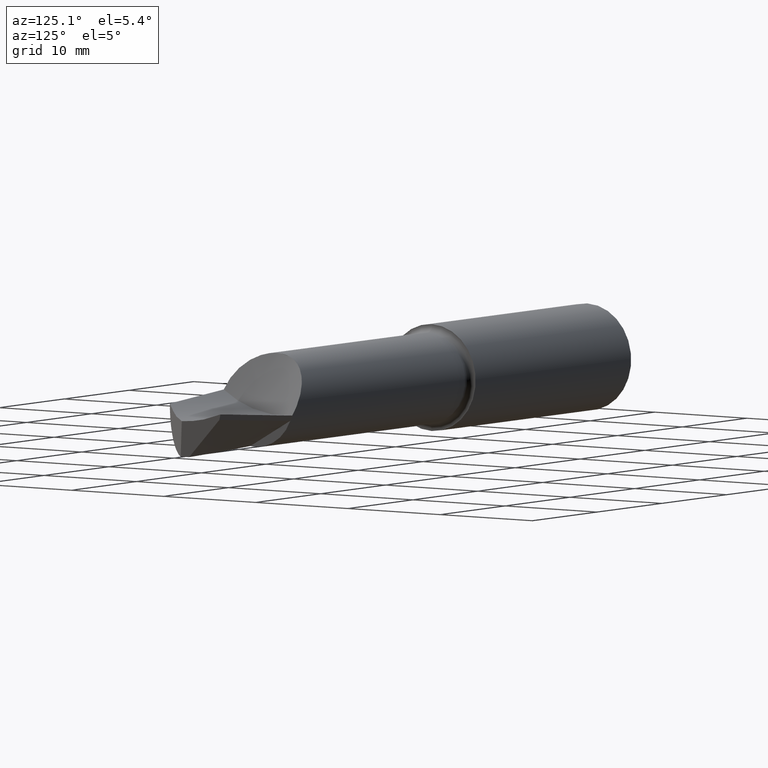
[diagram: clean part render]
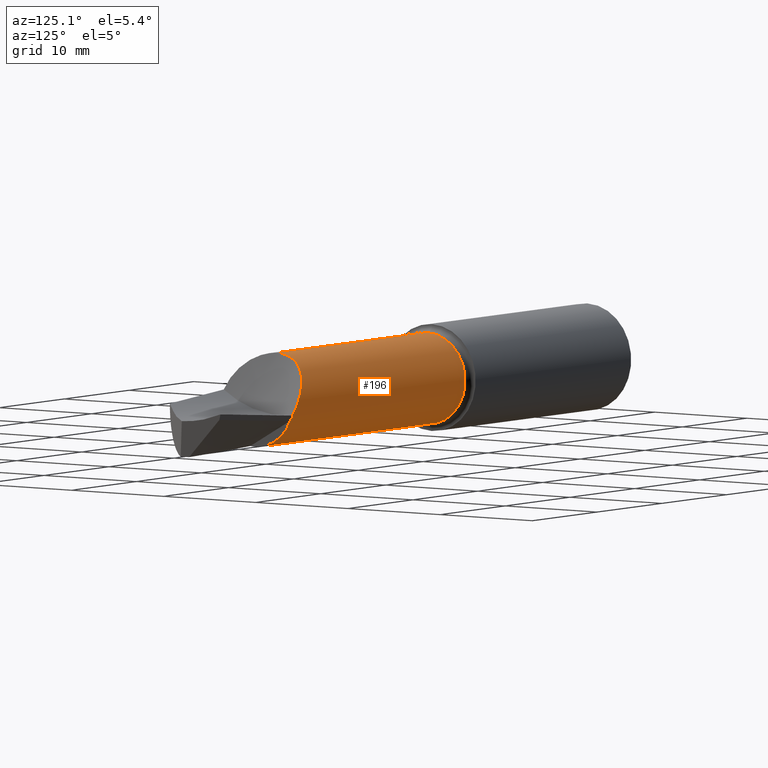
[diagram: same view with one face highlighted and labeled with its STEP entity id]
A machine part, auxiliary view. The second image highlights one B-rep face of the part: STEP entity #196.
In plain terms, the highlighted cylindrical surface (partial cylindrical patch) has radius 4.064 mm, axis along (-1, -0, -0).
Its self-contained STEP definition (entity closure, byte-faithful):
#9 = CARTESIAN_POINT ( 'NONE',  ( 1.920871276518390847, 0.1082838015085670902, 0.1177907047447029343 ) ) ;
#13 = ORIENTED_EDGE ( 'NONE', *, *, #622, .T. ) ;
#15 = CARTESIAN_POINT ( 'NONE',  ( 1.920712789876177551, 0.1080209964743852336, 0.1180317589214080198 ) ) ;
#19 = CARTESIAN_POINT ( 'NONE',  ( 1.998603276693925901, 0.1603637048867739556, 0.003625442116832091732 ) ) ;
#23 = ORIENTED_EDGE ( 'NONE', *, *, #470, .F. ) ;
#24 = CARTESIAN_POINT ( 'NONE',  ( 1.989948343244846374, 0.1591131003026595714, 0.01683813177506649980 ) ) ;
#74 = CARTESIAN_POINT ( 'NONE',  ( 2.030000000000000249, 0.000000000000000000, 0.000000000000000000 ) ) ;
#76 = VERTEX_POINT ( 'NONE', #324 ) ;
#80 = CARTESIAN_POINT ( 'NONE',  ( 1.991119472828822845, 0.1592905354085780156, 0.01505102133309209334 ) ) ;
#84 = B_SPLINE_CURVE_WITH_KNOTS ( 'NONE', 3,
 ( #757, #355, #487, #86, #632, #561, #160, #495, #90, #575, #15, #9, #702, #492, #212, #284, #848, #835, #146, #627, #227, #420, #709, #349, #769, #220, #289, #216, #504, #151, #829, #712, #432, #363, #565, #765, #361, #24, #429, #777, #636, #80, #19, #293, #570, #639, #844 ),
 .UNSPECIFIED., .F., .F.,
 ( 4, 2, 2, 1, 1, 1, 1, 2, 2, 2, 2, 2, 1, 1, 1, 1, 1, 2, 2, 2, 2, 2, 1, 1, 1, 1, 2, 2, 2, 4 ),
 ( 0.000000000000000000, 0.1249999999996976585, 0.1874999999995461131, 0.2187499999994697575, 0.2343749999994310940, 0.2421874999994118594, 0.2460937499994021727, 0.2480468749993972877, 0.2499999999993924027, 0.3749999999991128208, 0.4374999999989738764, 0.4687499999989044319, 0.4843749999988689603, 0.4921874999988511967, 0.4960937499988423149, 0.4980468749988371524, 0.4990234374988346544, 0.4995117187488326560, 0.4999999999988307131, 0.6249999999991795452, 0.6874999999993546274, 0.7187499999994416688, 0.7343749999994857447, 0.7421874999995077271, 0.7460937499995187183, 0.7480468749995241584, 0.7490234374995273781, 0.7499999999995304867, 0.8749999999997651878, 1.000000000000000000 ),
 .UNSPECIFIED. ) ;
#86 = CARTESIAN_POINT ( 'NONE',  ( 1.910327723181869830, 0.08641472160125056312, 0.1347679649106934829 ) ) ;
#90 = CARTESIAN_POINT ( 'NONE',  ( 1.919928138713796084, 0.1067020919287988007, 0.1192289840019037095 ) ) ;
#114 = CARTESIAN_POINT ( 'NONE',  ( 0.000000000000000000, 0.000000000000000000, 0.1600000000000000311 ) ) ;
#124 = CYLINDRICAL_SURFACE ( 'NONE', #234, 0.1600000000000000311 ) ;
#125 = VECTOR ( 'NONE', #147, 39.37007874015748143 ) ;
#146 = CARTESIAN_POINT ( 'NONE',  ( 1.947019681881580588, 0.1387129769115153510, 0.07979012570145578576 ) ) ;
#147 = DIRECTION ( 'NONE',  ( -1.000000000000000000, -0.000000000000000000, -0.000000000000000000 ) ) ;
#151 = CARTESIAN_POINT ( 'NONE',  ( 1.958699372623301516, 0.1472939287305778944, 0.06321031264811800832 ) ) ;
#156 = DIRECTION ( 'NONE',  ( 0.000000000000000000, -1.776356839400250465E-15, 1.000000000000000000 ) ) ;
#160 = CARTESIAN_POINT ( 'NONE',  ( 1.916789700801570184, 0.1010672659549176622, 0.1240943027878889521 ) ) ;
#162 = EDGE_CURVE ( 'NONE', #183, #861, #250, .T. ) ;
#163 = VERTEX_POINT ( 'NONE', #236 ) ;
#170 = CARTESIAN_POINT ( 'NONE',  ( 1.904983688696478161, 0.002969815284514370178, 0.1599763615075830148 ) ) ;
#174 = DIRECTION ( 'NONE',  ( 1.000000000000000000, -0.000000000000000000, -0.000000000000000000 ) ) ;
#181 = CIRCLE ( 'NONE', #453, 0.1600000000000000311 ) ;
#183 = VERTEX_POINT ( 'NONE', #524 ) ;
#192 = CARTESIAN_POINT ( 'NONE',  ( 1.902730000000000254, 0.05267046966936036329, 0.1510821684541527876 ) ) ;
#196 = ADVANCED_FACE ( 'NONE', ( #822 ), #124, .T. ) ;
#198 = CARTESIAN_POINT ( 'NONE',  ( 1.904486475055115813, 0.005923995043626456222, 0.1599058303736695108 ) ) ;
#203 = CARTESIAN_POINT ( 'NONE',  ( 2.030000000000000249, 1.959434878635765723E-17, -0.1600000000000000311 ) ) ;
#212 = CARTESIAN_POINT ( 'NONE',  ( 1.929409197918347196, 0.1210286087172428443, 0.1051256315935510388 ) ) ;
#213 = CARTESIAN_POINT ( 'NONE',  ( 0.000000000000000000, 1.959434878635765723E-17, -0.1600000000000000311 ) ) ;
#216 = CARTESIAN_POINT ( 'NONE',  ( 1.953970012117490551, 0.1439662759634111333, 0.06981197197337773996 ) ) ;
#220 = CARTESIAN_POINT ( 'NONE',  ( 1.953861408742878281, 0.1438905671395183661, 0.06996789774167704035 ) ) ;
#227 = CARTESIAN_POINT ( 'NONE',  ( 1.950860459032707883, 0.1417270032833742310, 0.07427636072002410939 ) ) ;
#234 = AXIS2_PLACEMENT_3D ( 'NONE', #553, #335, #826 ) ;
#236 = CARTESIAN_POINT ( 'NONE',  ( 1.905499570275073884, -5.321508395890695654E-06, 0.1600360725456251021 ) ) ;
#243 = ORIENTED_EDGE ( 'NONE', *, *, #672, .T. ) ;
#250 = CIRCLE ( 'NONE', #528, 0.1600000000000000588 ) ;
#256 = VERTEX_POINT ( 'NONE', #203 ) ;
#275 = CARTESIAN_POINT ( 'NONE',  ( 1.902730000000000254, 0.01989993846662519231, 0.1587576531982774763 ) ) ;
#284 = CARTESIAN_POINT ( 'NONE',  ( 1.937645129732998184, 0.1301111106144090257, 0.09325196797482968036 ) ) ;
#289 = CARTESIAN_POINT ( 'NONE',  ( 1.953917806275821123, 0.1439299122041075019, 0.06988692580905196683 ) ) ;
#293 = CARTESIAN_POINT ( 'NONE',  ( 2.005324745455346225, 0.1601424170580331985, -0.006971042043759497972 ) ) ;
#302 = CARTESIAN_POINT ( 'NONE',  ( 1.905499570275073884, -5.321508395890695654E-06, 0.1600360725456251021 ) ) ;
#315 = CARTESIAN_POINT ( 'NONE',  ( 0.9848893049320387449, 0.000000000000000000, 0.000000000000000000 ) ) ;
#317 = ORIENTED_EDGE ( 'NONE', *, *, #643, .F. ) ;
#319 = CARTESIAN_POINT ( 'NONE',  ( 1.905439237216514314, 0.0004229076541224842411, 0.1599995824216486340 ) ) ;
#323 = CARTESIAN_POINT ( 'NONE',  ( 2.027284874116872082, 0.1542105332948809637, -0.04265104243636441694 ) ) ;
#324 = CARTESIAN_POINT ( 'NONE',  ( 2.030000000000000693, 0.1480765703150433432, -0.06060799719322888107 ) ) ;
#334 = CARTESIAN_POINT ( 'NONE',  ( 2.029999999999999805, 0.1542653020987288237, -0.04245252134311836706 ) ) ;
#335 = DIRECTION ( 'NONE',  ( -1.000000000000000000, -0.000000000000000000, -0.000000000000000000 ) ) ;
#345 = DIRECTION ( 'NONE',  ( -1.000000000000000000, -0.000000000000000000, -0.000000000000000000 ) ) ;
#349 = CARTESIAN_POINT ( 'NONE',  ( 1.953579831434732794, 0.1436934744917261753, 0.07037216748723297555 ) ) ;
#355 = CARTESIAN_POINT ( 'NONE',  ( 1.903737868345322770, 0.06254246222550741141, 0.1476406931928825328 ) ) ;
#361 = CARTESIAN_POINT ( 'NONE',  ( 1.988736690453450473, 0.1589113314863259685, 0.01868532291329296630 ) ) ;
#363 = CARTESIAN_POINT ( 'NONE',  ( 1.980659223266723501, 0.1570289741151467133, 0.03093100650762655238 ) ) ;
#366 = EDGE_CURVE ( 'NONE', #256, #861, #425, .T. ) ;
#393 = VERTEX_POINT ( 'NONE', #488 ) ;
#409 = CARTESIAN_POINT ( 'NONE',  ( 1.903035619492304820, 0.01668207598574054581, 0.1591610274994331997 ) ) ;
#420 = CARTESIAN_POINT ( 'NONE',  ( 1.952405490648220443, 0.1428583629082460227, 0.07205818879807183996 ) ) ;
#425 = LINE ( 'NONE', #213, #125 ) ;
#429 = CARTESIAN_POINT ( 'NONE',  ( 1.990560728681558089, 0.1592080232503708392, 0.01590384677769644123 ) ) ;
#432 = CARTESIAN_POINT ( 'NONE',  ( 1.978309509796804866, 0.1562809758847625574, 0.03446099718138136148 ) ) ;
#438 = EDGE_CURVE ( 'NONE', #535, #563, #846, .T. ) ;
#448 = DIRECTION ( 'NONE',  ( -1.000000000000000000, -0.000000000000000000, -0.000000000000000000 ) ) ;
#449 = B_SPLINE_CURVE_WITH_KNOTS ( 'NONE', 3,
 ( #302, #663, #319, #596, #856, #170, #198, #811, #409, #275 ),
 .UNSPECIFIED., .F., .F.,
 ( 4, 2, 1, 1, 1, 1, 4 ),
 ( 0.9236952330290405522, 0.9260797569968829412, 0.9284642809647252193, 0.9332333289004099974, 0.9427714247717798868, 0.9618476165145197765, 1.000000000000000000 ),
 .UNSPECIFIED. ) ;
#453 = AXIS2_PLACEMENT_3D ( 'NONE', #499, #775, #156 ) ;
#454 = DIRECTION ( 'NONE',  ( 0.000000000000000000, 0.000000000000000000, 1.000000000000000000 ) ) ;
#455 = ORIENTED_EDGE ( 'NONE', *, *, #366, .T. ) ;
#470 = EDGE_CURVE ( 'NONE', #163, #183, #867, .T. ) ;
#487 = CARTESIAN_POINT ( 'NONE',  ( 1.905756869543390408, 0.07230905699555215116, 0.1431468972027687692 ) ) ;
#488 = CARTESIAN_POINT ( 'NONE',  ( 2.029999999999999805, 0.1542653020987288237, -0.04245252134311836706 ) ) ;
#492 = CARTESIAN_POINT ( 'NONE',  ( 1.924786096963005066, 0.1147195347630220186, 0.1118482726695071150 ) ) ;
#495 = CARTESIAN_POINT ( 'NONE',  ( 1.918853876954278448, 0.1048406460502311066, 0.1208799815007141898 ) ) ;
#499 = CARTESIAN_POINT ( 'NONE',  ( 2.030000000000000249, 0.000000000000000000, 0.000000000000000000 ) ) ;
#504 = CARTESIAN_POINT ( 'NONE',  ( 1.955057482739563479, 0.1447233090776400555, 0.06825065017673760670 ) ) ;
#506 = ORIENTED_EDGE ( 'NONE', *, *, #580, .T. ) ;
#510 = EDGE_CURVE ( 'NONE', #163, #563, #449, .T. ) ;
#524 = CARTESIAN_POINT ( 'NONE',  ( 0.9848893049320387449, 0.000000000000000000, 0.1600000000000000588 ) ) ;
#528 = AXIS2_PLACEMENT_3D ( 'NONE', #315, #857, #454 ) ;
#535 = VERTEX_POINT ( 'NONE', #192 ) ;
#553 = CARTESIAN_POINT ( 'NONE',  ( 0.000000000000000000, 0.000000000000000000, 0.000000000000000000 ) ) ;
#561 = CARTESIAN_POINT ( 'NONE',  ( 1.915165002441519437, 0.09775157281019532240, 0.1266982236387926841 ) ) ;
#563 = VERTEX_POINT ( 'NONE', #685 ) ;
#565 = CARTESIAN_POINT ( 'NONE',  ( 1.984423666971432354, 0.1580085382935872973, 0.02523902326025207615 ) ) ;
#570 = CARTESIAN_POINT ( 'NONE',  ( 2.017359040737725540, 0.1581257402006327750, -0.02627621461258972113 ) ) ;
#572 = CIRCLE ( 'NONE', #692, 0.1600000000000000033 ) ;
#575 = CARTESIAN_POINT ( 'NONE',  ( 1.920475813014345112, 0.1076263144243698594, 0.1183925620416750452 ) ) ;
#580 = EDGE_CURVE ( 'NONE', #717, #393, #792, .T. ) ;
#591 = CARTESIAN_POINT ( 'NONE',  ( 1.902730000000000254, 0.000000000000000000, 0.000000000000000000 ) ) ;
#596 = CARTESIAN_POINT ( 'NONE',  ( 1.905361607730282181, 0.0008482323405152331769, 0.1599978928857576088 ) ) ;
#622 = EDGE_CURVE ( 'NONE', #535, #717, #84, .T. ) ;
#623 = DIRECTION ( 'NONE',  ( 0.000000000000000000, 0.000000000000000000, 1.000000000000000000 ) ) ;
#627 = CARTESIAN_POINT ( 'NONE',  ( 1.949566644978357077, 0.1407323299848055875, 0.07613376273260759330 ) ) ;
#632 = CARTESIAN_POINT ( 'NONE',  ( 1.912108399701592631, 0.09102530212010795374, 0.1317028238661296369 ) ) ;
#636 = CARTESIAN_POINT ( 'NONE',  ( 1.991000801700568701, 0.1592733464077736305, 0.01523218233566858183 ) ) ;
#639 = CARTESIAN_POINT ( 'NONE',  ( 2.022671867258684752, 0.1563332908048586656, -0.03498965181281516595 ) ) ;
#643 = EDGE_CURVE ( 'NONE', #256, #76, #181, .T. ) ;
#651 = CARTESIAN_POINT ( 'NONE',  ( 2.027284874116872082, 0.1542105332948809637, -0.04265104243636442388 ) ) ;
#663 = CARTESIAN_POINT ( 'NONE',  ( 1.905488763710874389, 0.0001540711736937171064, 0.1600000020619294083 ) ) ;
#672 = EDGE_CURVE ( 'NONE', #393, #76, #572, .T. ) ;
#684 = CARTESIAN_POINT ( 'NONE',  ( 0.9848893049320387449, 1.959434878635766031E-17, -0.1600000000000000588 ) ) ;
#685 = CARTESIAN_POINT ( 'NONE',  ( 1.902730000000000254, 0.01989993846662519231, 0.1587576531982774763 ) ) ;
#687 = ORIENTED_EDGE ( 'NONE', *, *, #162, .F. ) ;
#692 = AXIS2_PLACEMENT_3D ( 'NONE', #74, #345, #623 ) ;
#702 = CARTESIAN_POINT ( 'NONE',  ( 1.920971835313636022, 0.1084496714760331271, 0.1176379445373049309 ) ) ;
#709 = CARTESIAN_POINT ( 'NONE',  ( 1.953186901927334684, 0.1434164069487620652, 0.07093630664503006167 ) ) ;
#712 = CARTESIAN_POINT ( 'NONE',  ( 1.971740116386711872, 0.1539026042064881583, 0.04426288986698297123 ) ) ;
#714 = ORIENTED_EDGE ( 'NONE', *, *, #510, .T. ) ;
#717 = VERTEX_POINT ( 'NONE', #651 ) ;
#757 = CARTESIAN_POINT ( 'NONE',  ( 1.902730000000000254, 0.05267046966936036329, 0.1510821684541527876 ) ) ;
#765 = CARTESIAN_POINT ( 'NONE',  ( 1.986365857198742590, 0.1584625377751486264, 0.02229390079330416732 ) ) ;
#769 = CARTESIAN_POINT ( 'NONE',  ( 1.953776852155390875, 0.1438315139256571840, 0.07008929855425583000 ) ) ;
#775 = DIRECTION ( 'NONE',  ( 1.000000000000000000, 0.000000000000000000, 0.000000000000000000 ) ) ;
#777 = CARTESIAN_POINT ( 'NONE',  ( 1.990824585091791832, 0.1592473940801067689, 0.01550115264529941354 ) ) ;
#791 = DIRECTION ( 'NONE',  ( 0.000000000000000000, 9.769962616701377556E-15, 1.000000000000000000 ) ) ;
#792 =( BOUNDED_CURVE ( )  B_SPLINE_CURVE ( 2, ( #323, #807, #334 ),
 .UNSPECIFIED., .F., .T. ) 
 B_SPLINE_CURVE_WITH_KNOTS ( ( 3, 3 ),
 ( 0.5729901640989578659, 0.5754500642221486162 ),
 .UNSPECIFIED. ) 
 CURVE ( )  GEOMETRIC_REPRESENTATION_ITEM ( )  RATIONAL_B_SPLINE_CURVE ( ( 0.9633404495379964683, 0.9633116795879205219, 0.9632833094529361651 ) ) 
 REPRESENTATION_ITEM ( '' )  );
#807 = CARTESIAN_POINT ( 'NONE',  ( 2.028642356361447963, 0.1542379815764027551, -0.04255179951310362335 ) ) ;
#811 = CARTESIAN_POINT ( 'NONE',  ( 1.903602910401820392, 0.01177427514365085755, 0.1596270598190761558 ) ) ;
#822 = FACE_OUTER_BOUND ( 'NONE', #838, .T. ) ;
#826 = DIRECTION ( 'NONE',  ( 0.000000000000000000, 0.000000000000000000, 1.000000000000000000 ) ) ;
#829 = CARTESIAN_POINT ( 'NONE',  ( 1.968000183446197093, 0.1521453218761694148, 0.04974497258705809499 ) ) ;
#835 = CARTESIAN_POINT ( 'NONE',  ( 1.945375926499631980, 0.1373267620022158852, 0.08214974121593701661 ) ) ;
#838 = EDGE_LOOP ( 'NONE', ( #317, #455, #687, #23, #714, #869, #13, #506, #243 ) ) ;
#844 = CARTESIAN_POINT ( 'NONE',  ( 2.027284874116872082, 0.1542105332948809637, -0.04265104243636442388 ) ) ;
#846 = CIRCLE ( 'NONE', #847, 0.1600000000000000311 ) ;
#847 = AXIS2_PLACEMENT_3D ( 'NONE', #591, #174, #791 ) ;
#848 = CARTESIAN_POINT ( 'NONE',  ( 1.940607320401488201, 0.1330730928267968294, 0.08899679848705428775 ) ) ;
#856 = CARTESIAN_POINT ( 'NONE',  ( 1.905246153345839355, 0.001485734986164766657, 0.1599940885160396620 ) ) ;
#857 = DIRECTION ( 'NONE',  ( -1.000000000000000000, -0.000000000000000000, -0.000000000000000000 ) ) ;
#860 = VECTOR ( 'NONE', #448, 39.37007874015748143 ) ;
#861 = VERTEX_POINT ( 'NONE', #684 ) ;
#867 = LINE ( 'NONE', #114, #860 ) ;
#869 = ORIENTED_EDGE ( 'NONE', *, *, #438, .F. ) ;